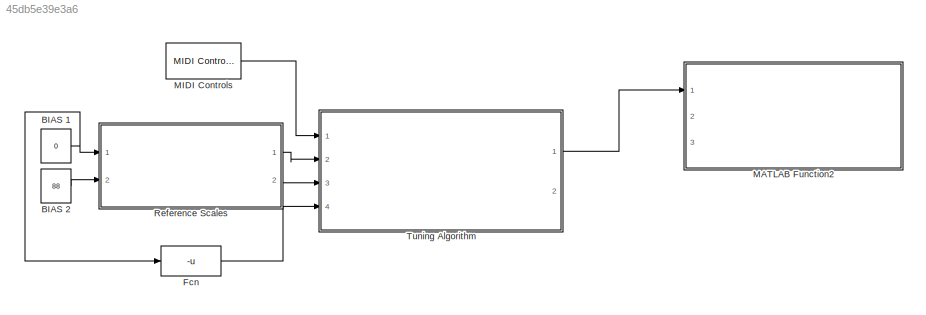
MODEL slx_45db5e39e3a6
KIND model
CONFIG AbsTol = auto
CONFIG EnableMultiTasking = off
CONFIG FixedStep = auto
CONFIG MaxStep = auto
CONFIG MinStep = auto
CONFIG RelTol = 1e-3
CONFIG SampleTimeConstraint = Unconstrained
CONFIG Solver = VariableStepAuto
CONFIG SolverName = VariableStepAuto
CONFIG StartTime = 0.0
CONFIG StopTime = 10.0
BLOCK [Constant] BIAS 1
  Value = 0
BLOCK [Constant] BIAS 2
  Value = 88
BLOCK [Fcn] Fcn
  Expr = -u
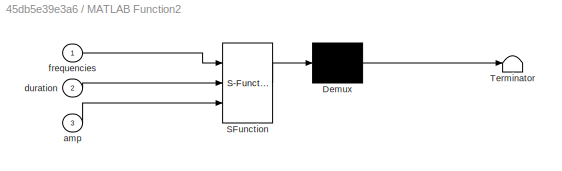
BLOCK [SubSystem] MATLAB Function2
  ErrorFcn = Stateflow.Translate.translate
  PermitHierarchicalResolution = ExplicitOnly
  Ports = [3]
  RequestExecContextInheritance = off
  SFBlockType = MATLAB Function
  TreatAsAtomicUnit = on
BLOCK [Demux] MATLAB Function2/ Demux 
  Outputs = 1
  Ports = [1, 1]
BLOCK [S-Function] MATLAB Function2/ SFunction 
  EnableBusSupport = on
  FunctionName = sf_sfun
  PortCounts = [3 1]
  Ports = [3, 1]
  SFcnIsStateOwnerBlock = off
  SFunctionDeploymentMode = off
  Tag = Stateflow S-Function PianoToSineModel 3
BLOCK [Terminator] MATLAB Function2/ Terminator 
BLOCK [Inport] MATLAB Function2/amp
  IconDisplay = Port number
  Port = 3
BLOCK [Inport] MATLAB Function2/duration
  IconDisplay = Port number
  Port = 2
BLOCK [Inport] MATLAB Function2/frequencies
  IconDisplay = Port number
BLOCK [Reference] MIDI Controls  REF=dspsrcs4/MIDI Controls
  Diagnostics = AllowInheritedTsInSrc
  Ports = [0, 1]
  SourceBlock = dspsrcs4/MIDI Controls
  SourceProductBaseCode = DS
  SourceProductName = DSP System Toolbox
  SourceType = MIDI Controls
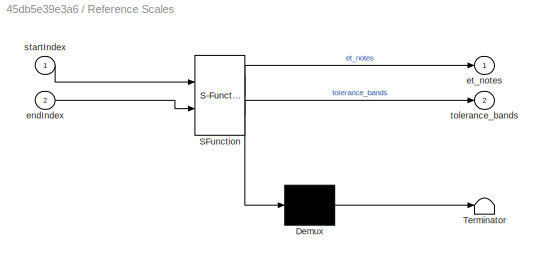
BLOCK [SubSystem] Reference Scales
  ErrorFcn = Stateflow.Translate.translate
  PermitHierarchicalResolution = ExplicitOnly
  Ports = [2, 2]
  RequestExecContextInheritance = off
  SFBlockType = MATLAB Function
  TreatAsAtomicUnit = on
BLOCK [Demux] Reference Scales/ Demux 
  Outputs = 1
  Ports = [1, 1]
BLOCK [S-Function] Reference Scales/ SFunction 
  EnableBusSupport = on
  FunctionName = sf_sfun
  PortCounts = [2 3]
  Ports = [2, 3]
  SFcnIsStateOwnerBlock = off
  SFunctionDeploymentMode = off
  Tag = Stateflow S-Function PianoToSineModel 1
BLOCK [Terminator] Reference Scales/ Terminator 
BLOCK [Inport] Reference Scales/endIndex
  IconDisplay = Port number
  Port = 2
BLOCK [Outport] Reference Scales/et_notes
  IconDisplay = Port number
BLOCK [Inport] Reference Scales/startIndex
  IconDisplay = Port number
BLOCK [Outport] Reference Scales/tolerance_bands
  IconDisplay = Port number
  Port = 2
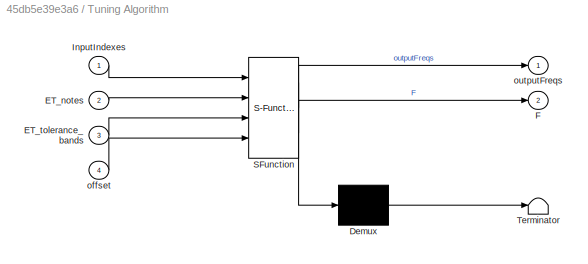
BLOCK [SubSystem] Tuning Algorithm 
  ErrorFcn = Stateflow.Translate.translate
  PermitHierarchicalResolution = ExplicitOnly
  Ports = [4, 2]
  RequestExecContextInheritance = off
  SFBlockType = MATLAB Function
  TreatAsAtomicUnit = on
BLOCK [Demux] Tuning Algorithm / Demux 
  Outputs = 1
  Ports = [1, 1]
BLOCK [S-Function] Tuning Algorithm / SFunction 
  EnableBusSupport = on
  FunctionName = sf_sfun
  PortCounts = [4 3]
  Ports = [4, 3]
  SFcnIsStateOwnerBlock = off
  SFunctionDeploymentMode = off
  Tag = Stateflow S-Function PianoToSineModel 2
BLOCK [Terminator] Tuning Algorithm / Terminator 
BLOCK [Inport] Tuning Algorithm /ET_notes
  IconDisplay = Port number
  Port = 2
BLOCK [Inport] Tuning Algorithm /ET_tolerance_bands
  IconDisplay = Port number
  Port = 3
BLOCK [Outport] Tuning Algorithm /F
  IconDisplay = Port number
  Port = 2
BLOCK [Inport] Tuning Algorithm /InputIndexes
  IconDisplay = Port number
BLOCK [Inport] Tuning Algorithm /offset
  IconDisplay = Port number
  Port = 4
BLOCK [Outport] Tuning Algorithm /outputFreqs
  IconDisplay = Port number
NET BIAS 1:1 -> Fcn:1, Reference Scales:1
LINE BIAS 2:1 -> Reference Scales:2
LINE Fcn:1 -> Tuning Algorithm :4
LINE MIDI Controls:1 -> Tuning Algorithm :1
LINE Reference Scales:1 -> Tuning Algorithm :2
LINE Reference Scales:2 -> Tuning Algorithm :3
LINE Tuning Algorithm :1 -> MATLAB Function2:1
note: NET lines group one-source signal fan-out (src -> all destinations, sorted); 1:1 wires keep LINE
CHART Reference Scales states=1 transitions=1
  STATE_LABEL 'eML_blk_kernel()'
  STATE_LABEL "SCRIPT:\nfunction [et_notes, tolerance_bands] = generateETNotes(startIndex, endIndex)\n%GENERATEETNOTES returns array [startIndex, endIndex] of equal\n% temperament frequencies.  Assumes A4=440.\n\nA4 = 440;         % frequency typically associated with A4 in western music\nA4_pos = 49;      % A4 is 49th note on piano\nmax_cent_change = 49;   % controls algo's wiggle room\nindex = 1;\n\net_notes = ones(1, e...<+482ch>"
CHART Tuning Algorithm
 states=1 transitions=1
  STATE_LABEL 'eML_blk_kernel()'
  STATE_LABEL 'SCRIPT:\nfunction [outputFreqs, F] = Algorithm1(InputIndexes, ET_notes, ET_tolerance_bands, offset)\n%ALGORITHM1 Seeks to maximize the fundamental Frequency st. adjusting the\n%original notes as little as possible\ntic  % start timer\n\n%adjustable params:\nmax_multiple = 24;\n\nnum_notes = length(InputIndexes);\nadj_distances = zeros(1, num_notes);\nfor i = 1:(num_notes - 1)\n    adj_distances(i) = ET_notes(...<+1181ch>'
CHART MATLAB Function2 states=1 transitions=1
  STATE_LABEL 'eML_blk_kernel()'
  STATE_LABEL 'SCRIPT:\nfunction playNotes(frequencies,duration, amp)\n%PLAYNOTES Summary of this function goes here\n%   Detailed explanation goes here\n\n    %temporary fix: for some reason, the first note starts earlier than the\n    %others, so fixing this by adding a leading 0\n    frequencies = [0, frequencies];\n\n    sampling_frequency = 8192;\n    values = 0:(1/sampling_frequency):duration;\n    test = 2*pi*freque...<+96ch>'
